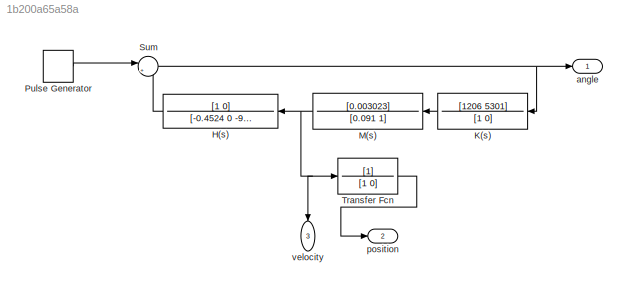
MODEL slx_1b200a65a58a
KIND model
CONFIG AbsTol = auto
CONFIG EnableMultiTasking = off
CONFIG FixedStep = auto
CONFIG MaxStep = auto
CONFIG MinStep = auto
CONFIG RelTol = 1e-3
CONFIG SampleTimeConstraint = Unconstrained
CONFIG SolverName = VariableStepAuto
CONFIG StartTime = 0.0
CONFIG StopTime = 20
BLOCK [TransferFcn] H(s)
  Denominator = [-0.4524 0 -9.8]
  Numerator = [1 0]
BLOCK [TransferFcn] K(s)
  Denominator = [1 0]
  Numerator = [1206 5301]
BLOCK [TransferFcn] M(s)
  Denominator = [0.091 1]
  Numerator = [0.003023]
BLOCK [DiscretePulseGenerator] Pulse Generator
  Amplitude = 1/36
  Period = 10
  PulseType = Time based
  PulseWidth = 0.1
BLOCK [Sum] Sum
  Inputs = |++
BLOCK [TransferFcn] Transfer Fcn
  Denominator = [1 0]
BLOCK [Outport] angle
BLOCK [Outport] position
  Port = 2
BLOCK [Outport] velocity
  NameLocation = left
  Port = 3
LINE H(s):1 -> Sum:2
LINE K(s):1 -> M(s):1
NET M(s):1 -> H(s):1, Transfer Fcn:1, velocity:1
LINE Pulse Generator:1 -> Sum:1
NET Sum:1 -> K(s):1, angle:1
LINE Transfer Fcn:1 -> position:1
note: NET lines group one-source signal fan-out (src -> all destinations, sorted); 1:1 wires keep LINE
